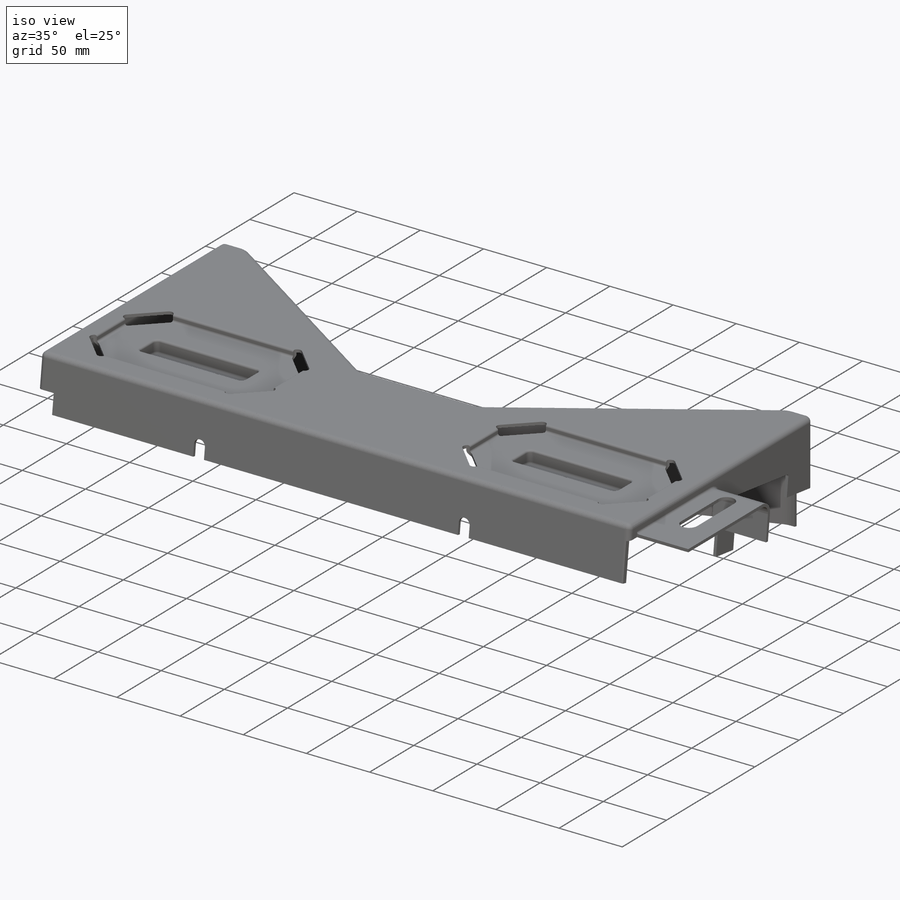
[diagram: iso view]
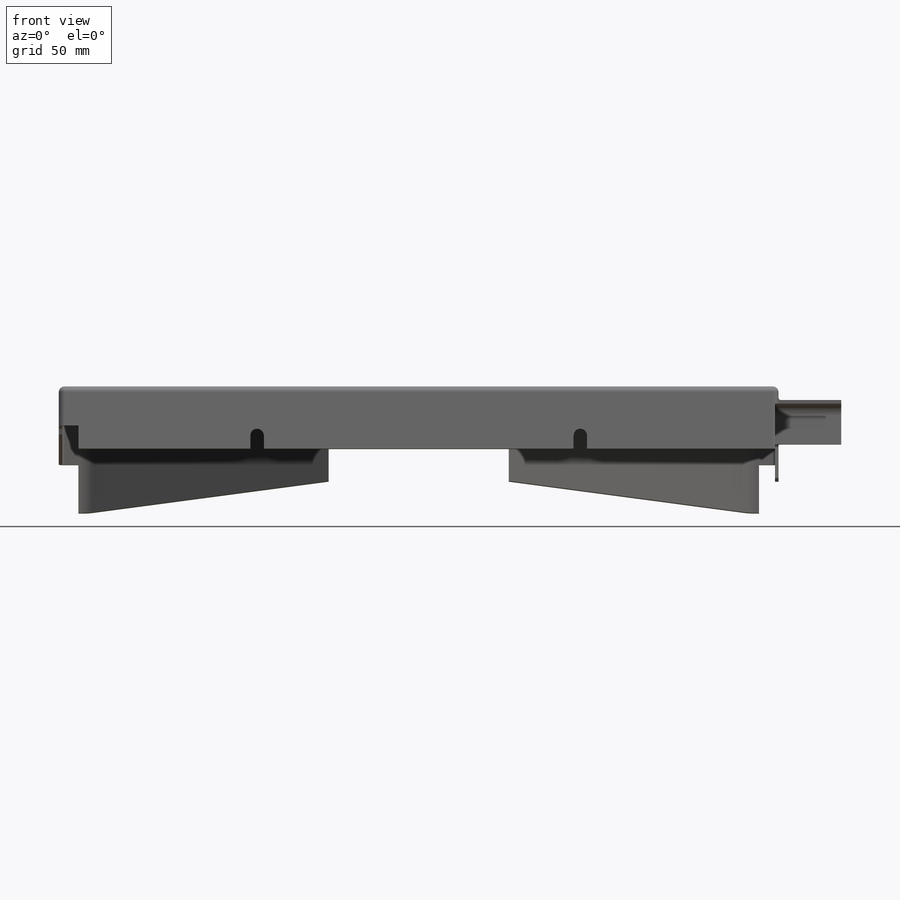
[diagram: front view]
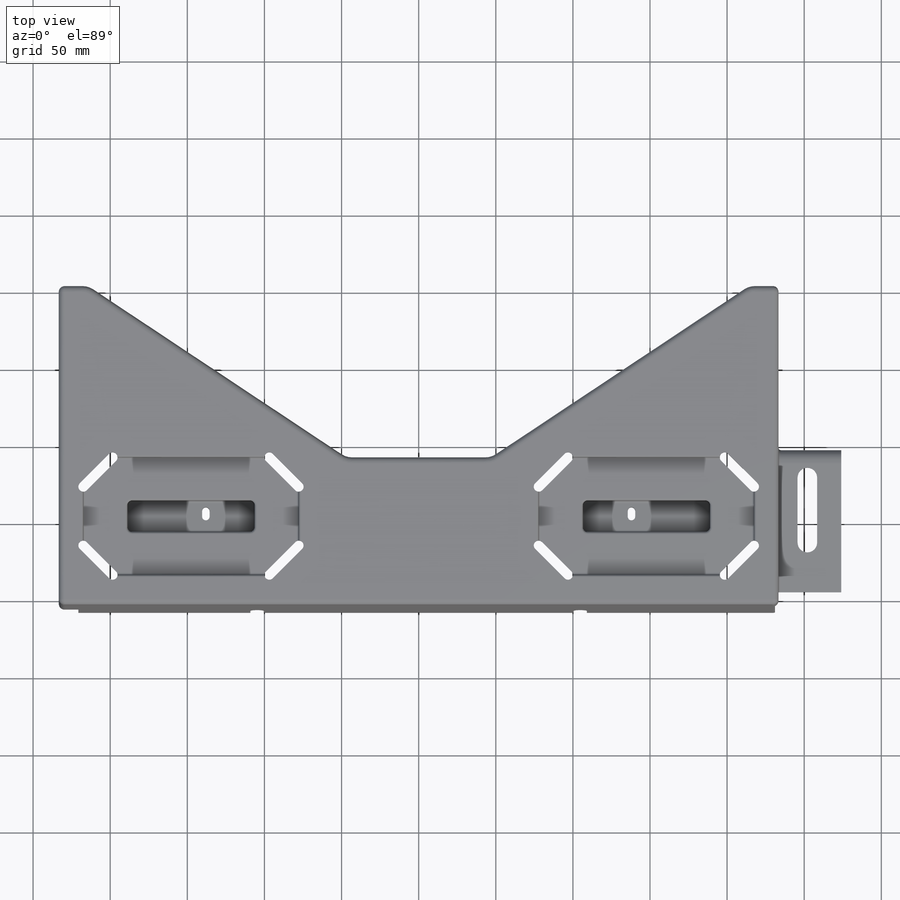
[diagram: top view]
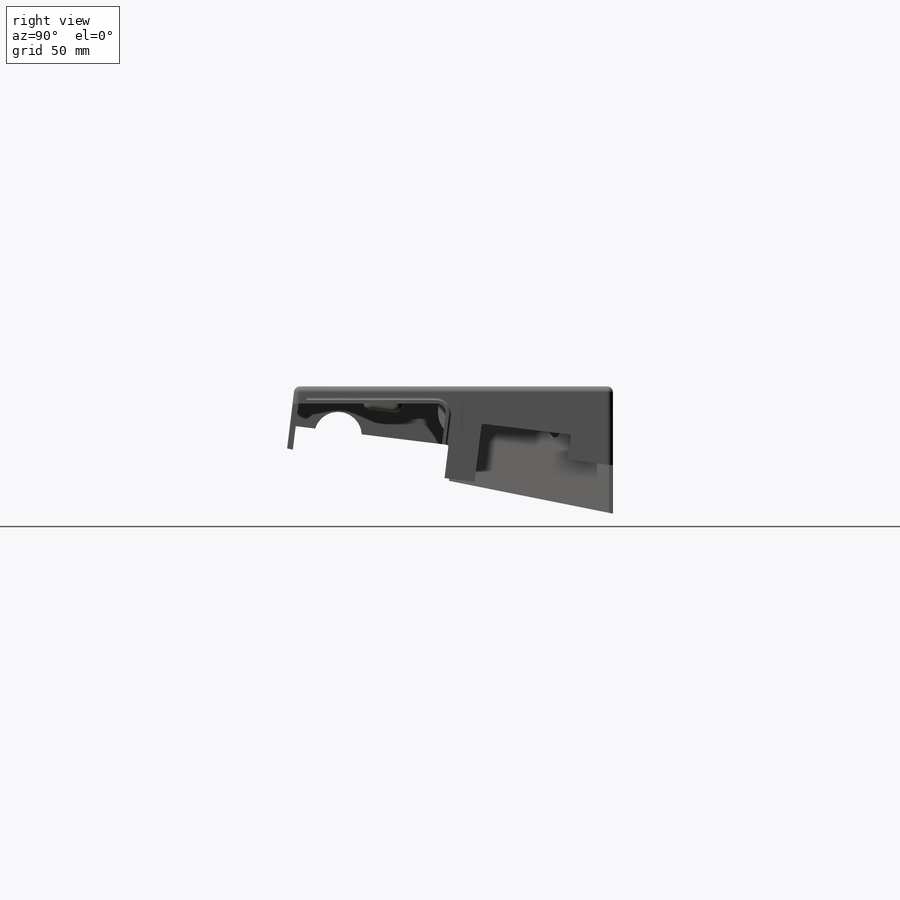
[diagram: right view]
SOLIDWORKS PART (.sldprt)
format: sldprt  version: not decoded by parser v0  size: 1,100,288 bytes
history: native  units: mm
features: sketch x19, cut_extrude x16, fillet x8, extrude x3, chamfer x2, material x1, shell x1, mirror x1 (+13 scaffold rows collapsed)
feature tree (64):
  scaffold x13  (default folders/planes/origin — collapsed)
  material  "Material <not specified>"
  sketch  "Sketch1"  dims[D1=466.725mm D2=206.375mm]
  extrude  "Boss-Extrude1"  Depth=82.55mm
  sketch  "Sketch2"  dims[c1.D1=146.05mm c1.D2=19.05mm c1.D3=19.05mm c1.D4=19.05mm c1.D5=19.05mm c2.D1=219.075mm c3.D1=15.0deg c3.D2=95.25mm c4.D1=93.98mm c4.D3=19.05mm c4.D4=19.05mm c4.D5=444.5mm c5.D5=~28.886582deg c6.D5=~210.318289mm c7.D5=~28.886582deg]
  cut_extrude  "Cut-Extrude1"  [1 undecoded]
  sketch  "Sketch10"  dims[c1.D1=206.375mm c2.D1=~172.983498deg c3.D1=~207.932202mm]
  cut_extrude  "angle"  [1 undecoded]
  fillet  "Fillet1"  Radius=12.7mm
  sketch  "Sketch6"  dims[c1.D1=76.2mm c1.D2=139.7mm c1.D3=19.05mm c1.D4=15.875mm c2.D3=19.05mm]
  cut_extrude  "Cut-Extrude3"  Depth=5.08mm
  chamfer  "Chamfer2"  Distance=19.05mm Angle=45deg
  sketch  "Sketch9"  dims[D1=82.55mm D2=20.32mm]
  cut_extrude  "Cut-Extrude6"  Depth=7.62mm
  fillet  "Fillet2"  Radius=3.175mm
  fillet  "Fillet3"  Radius=1.524mm
  fillet  "Fillet4"  Radius=3.81mm
  fillet  "Fillet5"  Radius=3.81mm
  shell  "Shell1"  Thickness=2.286mm
  sketch  "Sketch16"  dims[D2=50.8mm D1=25.4mm]
  cut_extrude  "side_shape"  Depth=12.7mm
  sketch  "Sketch19"
  cut_extrude  "Cut-Extrude14"  Depth=2.286mm
  sketch  "Sketch20"
  cut_extrude  "Cut-Extrude15"  Depth=10.414mm
  sketch  "Sketch17"  dims[D1=13.97mm D2=116.84mm D3=12.7mm]
  cut_extrude  "Cut-Extrude12"  [1 undecoded]
  chamfer  "Chamfer3"  Distance=19.05mm Angle=45deg
  fillet  "Fillet6"  Radius=6.35mm
  sketch  "Sketch18"  dims[D1=6.35mm D2=3.81mm D3=20.574mm D4=72.39mm]
  cut_extrude  "Cut-Extrude13"  [1 undecoded]
  mirror  "Mirror2"
  sketch  "Sketch13"  dims[c1.D1=2.413mm c1.D2=7.239mm c1.D3=92.964mm c1.D4=7.62mm c2.D2=8.636mm c2.D4=6.35mm]
  cut_extrude  "mount_holes"  [1 undecoded]
  sketch  "Sketch12"  dims[c1.D3=35.56mm c1.D1=31.75mm c1.D2=30.734mm c2.D3=13.208mm c2.D1=30.734mm c2.D2=31.75mm c3.D3=12.7mm c3.D1=~201.897724mm c4.D1=90.0deg c5.D1=12.7mm c5.D3=30.48mm]
  cut_extrude  "button_hole"  [1 undecoded]
  sketch  "Sketch11"  dims[D1=3.175mm]
  cut_extrude  "instruction_card_cutouts"  [1 undecoded]
  sketch  "Sketch14"  dims[D1=4.318mm D2=8.636mm D3=128.5875mm]
  cut_extrude  "Cut-Extrude10"  [1 undecoded]
  sketch  "Sketch21"  dims[D1=99.06mm D2=11.176mm]
  cut_extrude  "Cut-Extrude17"  [1 undecoded]
  fillet  "Fillet7"  Radius=6.35mm
  sketch  "Sketch22"  dims[D1=8.89mm D2=2.286mm]
  extrude  "Boss-Extrude3"  Depth=40.64mm
  sketch  "Sketch23"  dims[D1=6.35mm D2=15.621mm D3=25.908mm D4=54.864mm]
  cut_extrude  "Cut-Extrude18"  [1 undecoded]
  sketch  "Sketch24"  dims[c1.D1=~19.364386mm c2.D1=~0.026963deg c3.D1=2.032mm c3.D2=21.59mm c3.D3=19.558mm]
  extrude  "Boss-Extrude4"  [1 undecoded]
  sketch  "Sketch25"  dims[D1=58.42mm D2=16.256mm]
  cut_extrude  "Cut-Extrude19"  [1 undecoded]
  fillet  "Fillet8"  Radius=1.524mm
decode coverage: 35 of 50 modeling features carry decoded parameters
note: ~ marks probable driven/reference dimensions
note: 12 parameter values undecoded
summary: no parameter record found for 12 features
note: suppression state not decoded; provenance and decode notes live in map.json
